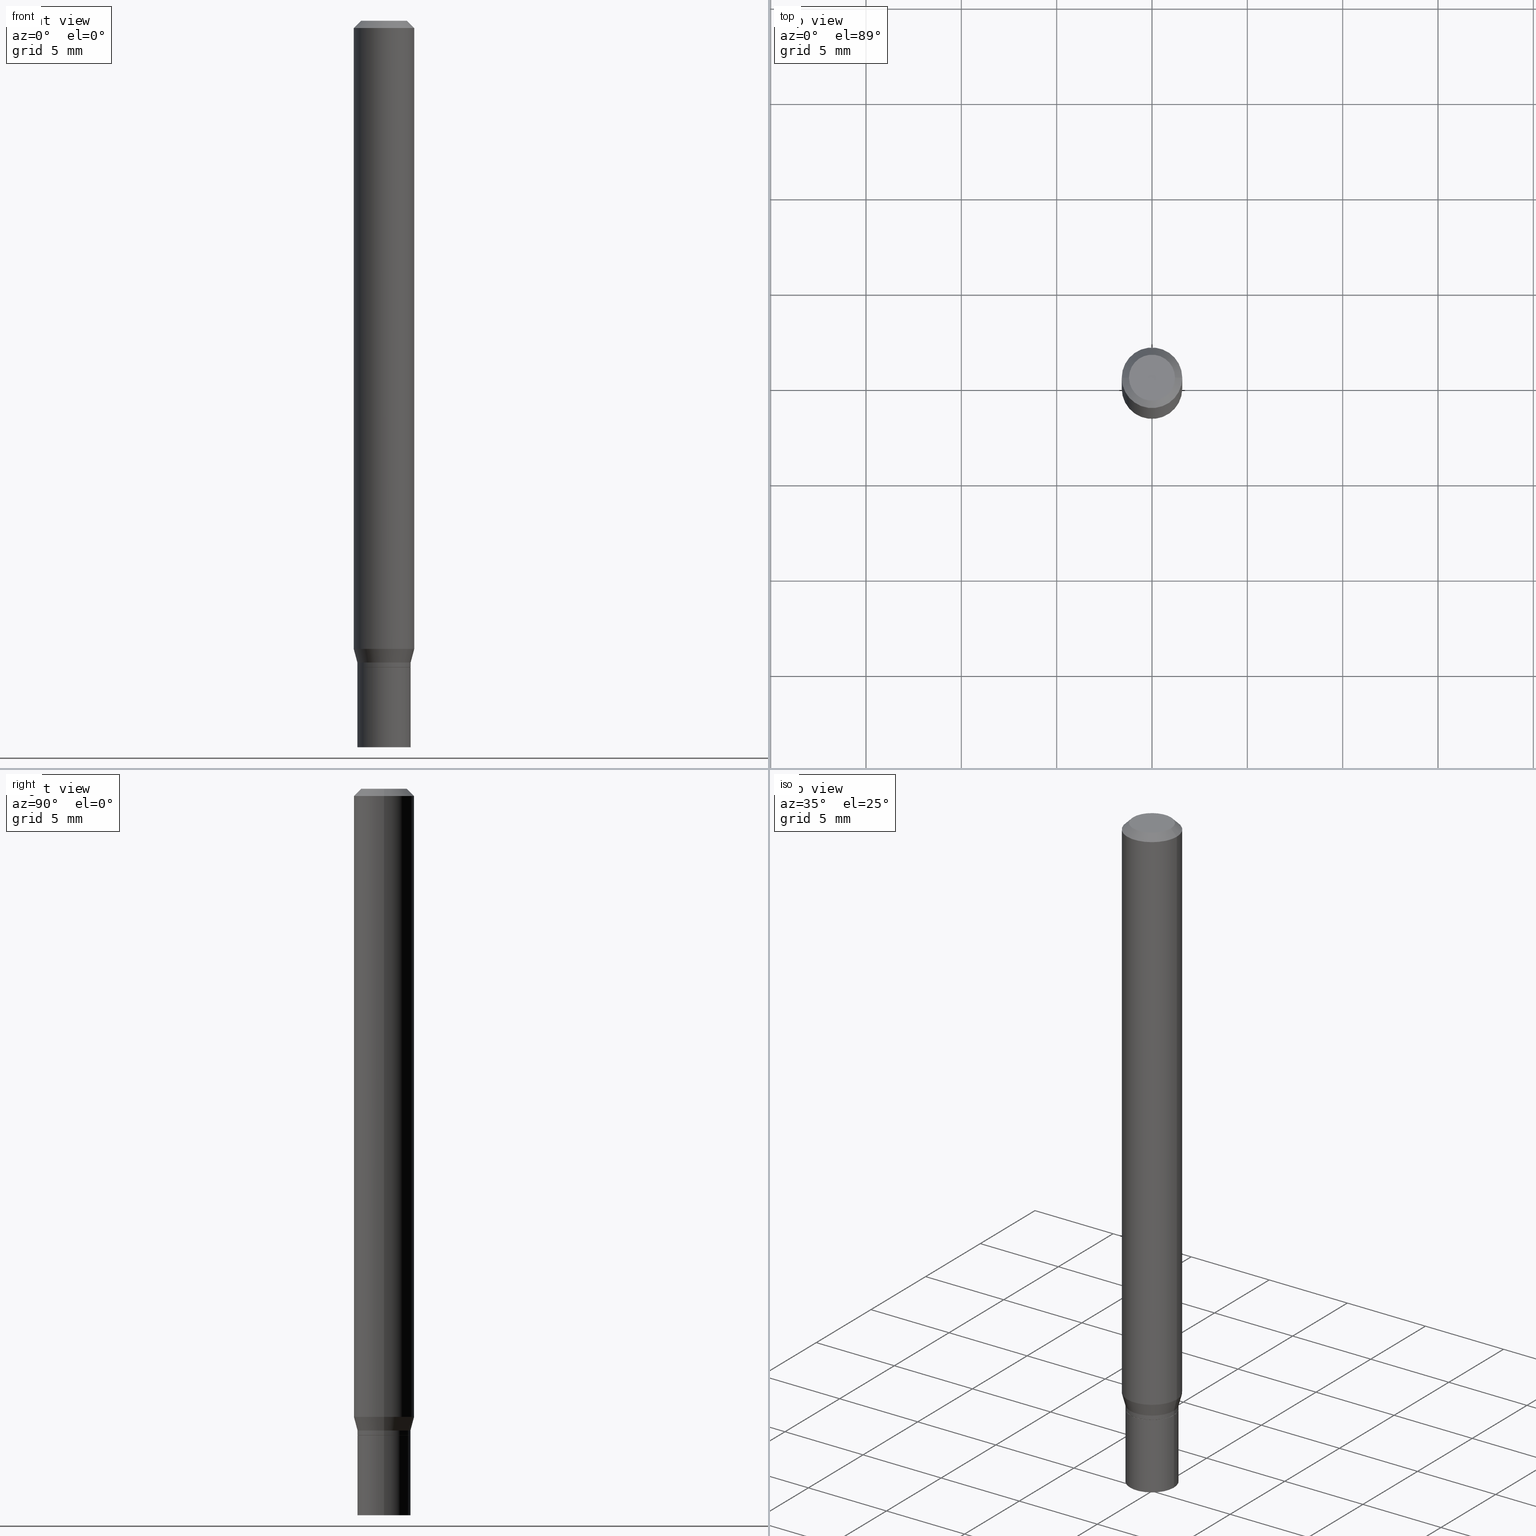
[diagram: canonical four-view strip — front | top / right | iso, engineering-drawing reading convention]
A machine part, canonical four-view strip (front | top / right | iso — engineering-drawing reading convention). The complete STEP part file that produces these views, byte-faithful:
ISO-10303-21;
HEADER;
FILE_DESCRIPTION (( 'STEP AP203' ),
    '1' );
FILE_NAME ('02433.STEP',
    '2024-03-18T20:34:24',
    ( '' ),
    ( '' ),
    'SwSTEP 2.0',
    'SolidWorks 2023',
    '' );
FILE_SCHEMA (( 'CONFIG_CONTROL_DESIGN' ));
ENDSEC;

DATA;
#1 = CARTESIAN_POINT ( 'NONE',  ( 3.668203209277705088E-31, -5.237222008264718399E-17, -0.01499999999999999944 ) ) ;
#2 = ADVANCED_FACE ( 'NONE', ( #409 ), #168, .F. ) ;
#3 = ADVANCED_FACE ( 'NONE', ( #81 ), #412, .T. ) ;
#4 = CARTESIAN_POINT ( 'NONE',  ( 3.264700856257157760E-29, -4.661127587355599122E-15, -1.335000000000000187 ) ) ;
#5 = DIRECTION ( 'NONE',  ( 1.000000000000000000, -6.982962677686266711E-15, 0.000000000000000000 ) ) ;
#6 = VECTOR ( 'NONE', #228, 39.37007874015748143 ) ;
#7 = CARTESIAN_POINT ( 'NONE',  ( 3.316907271900976096E-16, 0.04749999999999999362, -2.653275547260257586E-16 ) ) ;
#8 = ADVANCED_FACE ( 'NONE', ( #335 ), #37, .T. ) ;
#9 = DATE_AND_TIME ( #88, #443 ) ;
#10 = CARTESIAN_POINT ( 'NONE',  ( 0.000000000000000000, 0.000000000000000000, 0.000000000000000000 ) ) ;
#11 = CARTESIAN_POINT ( 'NONE',  ( 3.264700856257157760E-29, -4.661127587355599122E-15, -1.335000000000000187 ) ) ;
#12 = CARTESIAN_POINT ( 'NONE',  ( 0.04749999999999999362, -4.035134999187581581E-16, -1.989643822619502098E-16 ) ) ;
#13 = VERTEX_POINT ( 'NONE', #264 ) ;
#14 = AXIS2_PLACEMENT_3D ( 'NONE', #49, #161, #338 ) ;
#15 = CIRCLE ( 'NONE', #245, 0.05499999999999991701 ) ;
#16 = PLANE ( 'NONE',  #306 ) ;
#17 = DIRECTION ( 'NONE',  ( -2.445468806185136597E-29, 3.491481338843145583E-15, 1.000000000000000000 ) ) ;
#18 = ORIENTED_EDGE ( 'NONE', *, *, #27, .T. ) ;
#19 = CARTESIAN_POINT ( 'NONE',  ( 4.865611903635008365E-45, -6.946804277620623666E-31, -1.989643822619527736E-16 ) ) ;
#20 = ORIENTED_EDGE ( 'NONE', *, *, #300, .F. ) ;
#21 = ADVANCED_FACE ( 'NONE', ( #270 ), #407, .F. ) ;
#22 = CARTESIAN_POINT ( 'NONE',  ( 0.06250000000000000000, -4.964920048195750682E-15, -1.297009618943233411 ) ) ;
#23 = AXIS2_PLACEMENT_3D ( 'NONE', #267, #428, #105 ) ;
#24 = ORIENTED_EDGE ( 'NONE', *, *, #27, .F. ) ;
#25 =( NAMED_UNIT ( * ) PLANE_ANGLE_UNIT ( ) SI_UNIT ( $, .RADIAN. ) );
#26 = VERTEX_POINT ( 'NONE', #373 ) ;
#27 = EDGE_CURVE ( 'NONE', #356, #144, #343, .T. ) ;
#28 = DIRECTION ( 'NONE',  ( -2.445468806185136597E-29, 3.491481338843145583E-15, 1.000000000000000000 ) ) ;
#29 = VERTEX_POINT ( 'NONE', #40 ) ;
#30 = DIRECTION ( 'NONE',  ( -2.445468806185136877E-29, 3.491481338843145188E-15, 1.000000000000000000 ) ) ;
#31 = EDGE_CURVE ( 'NONE', #246, #356, #309, .T. ) ;
#32 = DIRECTION ( 'NONE',  ( 0.7071067811865656694, -2.468850131082446387E-15, 0.7071067811865294761 ) ) ;
#33 = AXIS2_PLACEMENT_3D ( 'NONE', #142, #431, #330 ) ;
#34 = DIRECTION ( 'NONE',  ( 1.000000000000000000, -6.982962677686270655E-15, 0.000000000000000000 ) ) ;
#35 = DIRECTION ( 'NONE',  ( -2.445468806185136877E-29, 3.491481338843145188E-15, 1.000000000000000000 ) ) ;
#36 =( CONVERSION_BASED_UNIT ( 'INCH', #370 ) LENGTH_UNIT ( ) NAMED_UNIT ( #67 ) );
#37 = CYLINDRICAL_SURFACE ( 'NONE', #14, 0.05499999999999992395 ) ;
#38 = EDGE_CURVE ( 'NONE', #184, #13, #63, .T. ) ;
#39 = DATE_TIME_ROLE ( 'classification_date' ) ;
#40 = CARTESIAN_POINT ( 'NONE',  ( -0.05499999999999991701, -4.159904970144704999E-15, -1.325000000000000178 ) ) ;
#41 = CIRCLE ( 'NONE', #381, 0.05499999999999992395 ) ;
#42 = APPROVAL_PERSON_ORGANIZATION ( #45, #453, #203 ) ;
#43 = COORDINATED_UNIVERSAL_TIME_OFFSET ( 5, 0, .BEHIND. ) ;
#44 = COORDINATED_UNIVERSAL_TIME_OFFSET ( 5, 0, .BEHIND. ) ;
#45 = PERSON_AND_ORGANIZATION ( #293, #404 ) ;
#46 = VECTOR ( 'NONE', #78, 39.37007874015748854 ) ;
#47 = PRODUCT_RELATED_PRODUCT_CATEGORY ( 'detail', '', ( #430 ) ) ;
#48 = AXIS2_PLACEMENT_3D ( 'NONE', #456, #420, #454 ) ;
#49 = CARTESIAN_POINT ( 'NONE',  ( 0.000000000000000000, 0.000000000000000000, 0.000000000000000000 ) ) ;
#50 = EDGE_CURVE ( 'NONE', #57, #246, #382, .T. ) ;
#51 = ORIENTED_EDGE ( 'NONE', *, *, #66, .F. ) ;
#52 = DIRECTION ( 'NONE',  ( -2.445468806185136597E-29, 3.491481338843145583E-15, 1.000000000000000000 ) ) ;
#53 = CARTESIAN_POINT ( 'NONE',  ( -0.05500000000000000028, -4.558376293142103594E-15, -1.335000000000000187 ) ) ;
#54 = EDGE_CURVE ( 'NONE', #287, #26, #359, .T. ) ;
#55 = LOCAL_TIME ( 16, 34, 24.00000000000000000, #310 ) ;
#56 = DIRECTION ( 'NONE',  ( -2.445468806185136597E-29, 3.491481338843145583E-15, 1.000000000000000000 ) ) ;
#57 = VERTEX_POINT ( 'NONE', #208 ) ;
#58 = LINE ( 'NONE', #421, #148 ) ;
#59 = ORIENTED_EDGE ( 'NONE', *, *, #361, .T. ) ;
#60 = DIRECTION ( 'NONE',  ( 1.000000000000000000, -6.982962677686273021E-15, 0.000000000000000000 ) ) ;
#61 = ORIENTED_EDGE ( 'NONE', *, *, #406, .F. ) ;
#62 = CARTESIAN_POINT ( 'NONE',  ( 0.05500000000000000028, -3.840629472727446888E-16, 2.681897226687764826E-30 ) ) ;
#63 = CIRCLE ( 'NONE', #268, 0.05449999999999999983 ) ;
#64 = AXIS2_PLACEMENT_3D ( 'NONE', #129, #17, #280 ) ;
#65 = ORIENTED_EDGE ( 'NONE', *, *, #261, .T. ) ;
#66 = EDGE_CURVE ( 'NONE', #13, #455, #119, .T. ) ;
#67 = DIMENSIONAL_EXPONENTS ( 1.000000000000000000, 0.000000000000000000, 0.000000000000000000, 0.000000000000000000, 0.000000000000000000, 0.000000000000000000, 0.000000000000000000 ) ;
#68 = DIRECTION ( 'NONE',  ( -2.445468806185136877E-29, 3.491481338843145188E-15, 1.000000000000000000 ) ) ;
#69 = ORIENTED_EDGE ( 'NONE', *, *, #197, .F. ) ;
#70 = DIRECTION ( 'NONE',  ( -2.445468806185136597E-29, 3.491481338843145583E-15, 1.000000000000000000 ) ) ;
#71 = CARTESIAN_POINT ( 'NONE',  ( 0.05499999999999991701, -5.010275721239913246E-15, -1.325000000000000178 ) ) ;
#72 = EDGE_CURVE ( 'NONE', #413, #246, #114, .T. ) ;
#73 = CARTESIAN_POINT ( 'NONE',  ( -0.05449999999999999983, -4.273881796366344571E-15, -1.335000000000000187 ) ) ;
#74 = DIRECTION ( 'NONE',  ( -2.445468806185136597E-29, 3.491481338843145583E-15, 1.000000000000000000 ) ) ;
#75 = VECTOR ( 'NONE', #263, 39.37007874015748143 ) ;
#76 = LINE ( 'NONE', #62, #337 ) ;
#77 = EDGE_CURVE ( 'NONE', #399, #455, #41, .T. ) ;
#78 = DIRECTION ( 'NONE',  ( 0.2588190451025211281, 1.565188264969622954E-15, 0.9659258262890679791 ) ) ;
#79 = PERSON_AND_ORGANIZATION_ROLE ( 'creator' ) ;
#80 = APPROVAL ( #162, 'UNSPECIFIED' ) ;
#81 = FACE_OUTER_BOUND ( 'NONE', #102, .T. ) ;
#82 = MECHANICAL_CONTEXT ( 'NONE', #447, 'mechanical' ) ;
#83 = AXIS2_PLACEMENT_3D ( 'NONE', #101, #139, #133 ) ;
#84 = CIRCLE ( 'NONE', #48, 0.05500000000000000028 ) ;
#85 = PERSON_AND_ORGANIZATION ( #293, #404 ) ;
#86 = APPROVAL_STATUS ( 'not_yet_approved' ) ;
#87 = EDGE_CURVE ( 'NONE', #246, #413, #414, .T. ) ;
#88 = CALENDAR_DATE ( 2024, 18, 3 ) ;
#89 = DIRECTION ( 'NONE',  ( -2.445468806185136597E-29, 3.491481338843145583E-15, 1.000000000000000000 ) ) ;
#90 = VECTOR ( 'NONE', #433, 39.37007874015748143 ) ;
#91 = DIRECTION ( 'NONE',  ( 1.000000000000000000, -6.982962677686273021E-15, 0.000000000000000000 ) ) ;
#92 = EDGE_CURVE ( 'NONE', #455, #57, #266, .T. ) ;
#93 = ADVANCED_FACE ( 'NONE', ( #194 ), #219, .T. ) ;
#94 = CYLINDRICAL_SURFACE ( 'NONE', #464, 0.06250000000000000000 ) ;
#95 = UNCERTAINTY_MEASURE_WITH_UNIT (LENGTH_MEASURE( 1.000000000000000082E-05 ), #36, 'distance_accuracy_value', 'NONE');
#96 = FACE_OUTER_BOUND ( 'NONE', #272, .T. ) ;
#97 = ORIENTED_EDGE ( 'NONE', *, *, #250, .T. ) ;
#98 = AXIS2_PLACEMENT_3D ( 'NONE', #435, #74, #192 ) ;
#99 = DIRECTION ( 'NONE',  ( -0.2588190451025211281, 5.211531920934547886E-15, 0.9659258262890679791 ) ) ;
#100 = ORIENTED_EDGE ( 'NONE', *, *, #31, .F. ) ;
#101 = CARTESIAN_POINT ( 'NONE',  ( 3.668203209277705088E-31, -5.237222008264718399E-17, -0.01499999999999999944 ) ) ;
#102 = EDGE_LOOP ( 'NONE', ( #457, #135, #313, #321 ) ) ;
#103 = FACE_OUTER_BOUND ( 'NONE', #170, .T. ) ;
#104 = ORIENTED_EDGE ( 'NONE', *, *, #54, .F. ) ;
#105 = DIRECTION ( 'NONE',  ( -1.000000000000000000, 6.982962677686266711E-15, 0.000000000000000000 ) ) ;
#106 = CC_DESIGN_APPROVAL ( #453, ( #207 ) ) ;
#107 = ORIENTED_EDGE ( 'NONE', *, *, #300, .T. ) ;
#108 = CARTESIAN_POINT ( 'NONE',  ( -0.05499999999999992395, -4.268583342018123747E-15, -1.334500000000000242 ) ) ;
#109 = ADVANCED_FACE ( 'NONE', ( #96 ), #258, .T. ) ;
#110 = CC_DESIGN_PERSON_AND_ORGANIZATION_ASSIGNMENT ( #123, #79, ( #207 ) ) ;
#111 = VERTEX_POINT ( 'NONE', #316 ) ;
#112 = LINE ( 'NONE', #73, #159 ) ;
#113 = DIRECTION ( 'NONE',  ( -2.445468806185136597E-29, 3.491481338843145583E-15, 1.000000000000000000 ) ) ;
#114 = CIRCLE ( 'NONE', #98, 0.06250000000000000000 ) ;
#115 = ORIENTED_EDGE ( 'NONE', *, *, #50, .F. ) ;
#116 = MANIFOLD_SOLID_BREP ( 'Body-Move/Copy2[2]', #157 ) ;
#117 = SHAPE_DEFINITION_REPRESENTATION ( #190, #206 ) ;
#118 = MANIFOLD_SOLID_BREP ( 'Body-Move/Copy2[1]', #239 ) ;
#119 = LINE ( 'NONE', #367, #336 ) ;
#120 = APPROVAL_STATUS ( 'not_yet_approved' ) ;
#121 = APPLICATION_CONTEXT ( 'configuration controlled 3d designs of mechanical parts and assemblies' ) ;
#122 = CARTESIAN_POINT ( 'NONE',  ( 0.06250000000000000000, -4.364351673553916694E-16, 3.047610484872459871E-30 ) ) ;
#123 = PERSON_AND_ORGANIZATION ( #293, #404 ) ;
#124 = AXIS2_PLACEMENT_3D ( 'NONE', #19, #416, #253 ) ;
#125 = LOCAL_TIME ( 16, 34, 24.00000000000000000, #43 ) ;
#126 = ADVANCED_FACE ( 'NONE', ( #315 ), #215, .T. ) ;
#127 = DIRECTION ( 'NONE',  ( 0.000000000000000000, 0.000000000000000000, 1.000000000000000000 ) ) ;
#128 = APPROVAL_DATE_TIME ( #273, #140 ) ;
#129 = CARTESIAN_POINT ( 'NONE',  ( 3.240246168195306775E-29, -4.626212773967169051E-15, -1.325000000000000178 ) ) ;
#130 = VECTOR ( 'NONE', #68, 39.37007874015748143 ) ;
#131 = DIRECTION ( 'NONE',  ( -2.445468806185136597E-29, 3.491481338843145583E-15, 1.000000000000000000 ) ) ;
#132 = ORIENTED_EDGE ( 'NONE', *, *, #87, .F. ) ;
#133 = DIRECTION ( 'NONE',  ( -1.000000000000000000, 6.982962677686266711E-15, 0.000000000000000000 ) ) ;
#134 = ADVANCED_FACE ( 'NONE', ( #451 ), #449, .T. ) ;
#135 = ORIENTED_EDGE ( 'NONE', *, *, #77, .T. ) ;
#136 = DIRECTION ( 'NONE',  ( -2.445468806185136597E-29, 3.491481338843145583E-15, 1.000000000000000000 ) ) ;
#137 = ORIENTED_EDGE ( 'NONE', *, *, #92, .F. ) ;
#138 = AXIS2_PLACEMENT_3D ( 'NONE', #323, #325, #301 ) ;
#139 = DIRECTION ( 'NONE',  ( 2.445468806185136597E-29, -3.491481338843145583E-15, -1.000000000000000000 ) ) ;
#140 = APPROVAL ( #120, 'UNSPECIFIED' ) ;
#141 = EDGE_LOOP ( 'NONE', ( #365, #465, #132, #115 ) ) ;
#142 = CARTESIAN_POINT ( 'NONE',  ( 3.840629472727772786E-16, 0.05499999999999534428, -1.335000000000000409 ) ) ;
#143 = ADVANCED_FACE ( 'NONE', ( #419 ), #94, .T. ) ;
#144 = VERTEX_POINT ( 'NONE', #357 ) ;
#145 = DIRECTION ( 'NONE',  ( -2.445468806185136597E-29, 3.491481338843145583E-15, 1.000000000000000000 ) ) ;
#146 = VERTEX_POINT ( 'NONE', #318 ) ;
#147 = LINE ( 'NONE', #368, #75 ) ;
#148 = VECTOR ( 'NONE', #99, 39.37007874015748854 ) ;
#149 = CONICAL_SURFACE ( 'NONE', #23, 0.06250000000000000000, 0.7853981633974549403 ) ;
#150 = ORIENTED_EDGE ( 'NONE', *, *, #279, .F. ) ;
#151 = CARTESIAN_POINT ( 'NONE',  ( 3.668203209277704895E-29, -5.237222008264718177E-15, -1.500000000000000222 ) ) ;
#152 = DIRECTION ( 'NONE',  ( -2.445468806185136597E-29, 3.491481338843145583E-15, 1.000000000000000000 ) ) ;
#153 = ADVANCED_FACE ( 'NONE', ( #390 ), #16, .F. ) ;
#154 = FACE_OUTER_BOUND ( 'NONE', #182, .T. ) ;
#155 = DIRECTION ( 'NONE',  ( -2.445468806185136597E-29, 3.491481338843145583E-15, 1.000000000000000000 ) ) ;
#156 = APPLICATION_PROTOCOL_DEFINITION ( 'international standard', 'config_control_design', 1994, #121 ) ;
#157 = CLOSED_SHELL ( 'NONE', ( #8, #463, #109, #341, #271, #290, #143, #348, #2, #21, #93, #3 ) ) ;
#158 = DIRECTION ( 'NONE',  ( -2.445468806185136597E-29, 3.491481338843145583E-15, 1.000000000000000000 ) ) ;
#159 = VECTOR ( 'NONE', #183, 39.37007874015748143 ) ;
#160 = APPROVAL_DATE_TIME ( #380, #453 ) ;
#161 = DIRECTION ( 'NONE',  ( -2.445468806185136597E-29, 3.491481338843145583E-15, 1.000000000000000000 ) ) ;
#162 = APPROVAL_STATUS ( 'not_yet_approved' ) ;
#163 = APPLICATION_PROTOCOL_DEFINITION ( 'international standard', 'config_control_design', 1994, #447 ) ;
#164 = AXIS2_PLACEMENT_3D ( 'NONE', #4, #155, #283 ) ;
#165 = CONICAL_SURFACE ( 'NONE', #64, 0.05499999999999991701, 0.2617993877991498519 ) ;
#166 = PERSON_AND_ORGANIZATION ( #293, #404 ) ;
#167 = ORIENTED_EDGE ( 'NONE', *, *, #38, .T. ) ;
#168 = PLANE ( 'NONE',  #374 ) ;
#169 = FACE_OUTER_BOUND ( 'NONE', #175, .T. ) ;
#170 = EDGE_LOOP ( 'NONE', ( #218, #97 ) ) ;
#171 = AXIS2_PLACEMENT_3D ( 'NONE', #210, #52, #350 ) ;
#172 = LOCAL_TIME ( 16, 34, 24.00000000000000000, #44 ) ;
#173 = CARTESIAN_POINT ( 'NONE',  ( 3.668203209277705088E-31, -5.237222008264718399E-17, -0.01499999999999999944 ) ) ;
#174 = CARTESIAN_POINT ( 'NONE',  ( 3.240246168195306775E-29, -4.626212773967169051E-15, -1.325000000000000178 ) ) ;
#175 = EDGE_LOOP ( 'NONE', ( #69, #65, #187, #294 ) ) ;
#176 = CC_DESIGN_PERSON_AND_ORGANIZATION_ASSIGNMENT ( #278, #442, ( #352 ) ) ;
#177 = CARTESIAN_POINT ( 'NONE',  ( 3.263478121854064959E-29, -4.659381846686178407E-15, -1.334500000000000242 ) ) ;
#178 = ORIENTED_EDGE ( 'NONE', *, *, #77, .F. ) ;
#179 = AXIS2_PLACEMENT_3D ( 'NONE', #303, #113, #369 ) ;
#180 = CONICAL_SURFACE ( 'NONE', #205, 0.05499999999999991701, 0.2617993877991498519 ) ;
#181 = DIRECTION ( 'NONE',  ( 0.7071067811865522357, -7.319954787623271823E-15, -0.7071067811865427988 ) ) ;
#182 = EDGE_LOOP ( 'NONE', ( #389, #59, #24, #100 ) ) ;
#183 = DIRECTION ( 'NONE',  ( -0.7071067811865656694, 7.493145998870420424E-15, 0.7071067811865294761 ) ) ;
#184 = VERTEX_POINT ( 'NONE', #355 ) ;
#185 = CC_DESIGN_PERSON_AND_ORGANIZATION_ASSIGNMENT ( #166, #340, ( #430 ) ) ;
#186 = DIRECTION ( 'NONE',  ( 1.000000000000000000, -6.982962677686273021E-15, 0.000000000000000000 ) ) ;
#187 = ORIENTED_EDGE ( 'NONE', *, *, #50, .T. ) ;
#188 = CARTESIAN_POINT ( 'NONE',  ( 3.264700856257157760E-29, -4.661127587355599122E-15, -1.335000000000000187 ) ) ;
#189 = VECTOR ( 'NONE', #181, 39.37007874015748143 ) ;
#190 = PRODUCT_DEFINITION_SHAPE ( 'NONE', 'NONE',  #207 ) ;
#191 = SECURITY_CLASSIFICATION ( '', '', #334 ) ;
#192 = DIRECTION ( 'NONE',  ( 1.000000000000000000, -6.982962677686262766E-15, 0.000000000000000000 ) ) ;
#193 = CARTESIAN_POINT ( 'NONE',  ( 0.000000000000000000, 0.000000000000000000, 0.000000000000000000 ) ) ;
#194 = FACE_OUTER_BOUND ( 'NONE', #378, .T. ) ;
#195 = COORDINATED_UNIVERSAL_TIME_OFFSET ( 5, 0, .BEHIND. ) ;
#196 = VERTEX_POINT ( 'NONE', #53 ) ;
#197 = EDGE_CURVE ( 'NONE', #29, #413, #58, .T. ) ;
#198 =( GEOMETRIC_REPRESENTATION_CONTEXT ( 3 ) GLOBAL_UNCERTAINTY_ASSIGNED_CONTEXT ( ( #95 ) ) GLOBAL_UNIT_ASSIGNED_CONTEXT ( ( #36, #25, #379 ) ) REPRESENTATION_CONTEXT ( 'NONE', 'WORKASPACE' ) );
#199 = DIRECTION ( 'NONE',  ( 1.000000000000000000, -6.982962677686265922E-15, 4.876176775795935793E-29 ) ) ;
#200 = DIRECTION ( 'NONE',  ( 1.000000000000000000, 0.000000000000000000, 0.000000000000000000 ) ) ;
#201 = EDGE_CURVE ( 'NONE', #144, #356, #422, .T. ) ;
#202 = APPROVAL_DATE_TIME ( #436, #80 ) ;
#203 = APPROVAL_ROLE ( '' ) ;
#204 = AXIS2_PLACEMENT_3D ( 'NONE', #236, #438, #372 ) ;
#205 = AXIS2_PLACEMENT_3D ( 'NONE', #265, #327, #186 ) ;
#206 = ADVANCED_BREP_SHAPE_REPRESENTATION ( '02433', ( #118, #116, #360 ), #198 ) ;
#207 = PRODUCT_DEFINITION ( 'UNKNOWN', '', #352, #317 ) ;
#208 = CARTESIAN_POINT ( 'NONE',  ( 0.05499999999999991701, -5.010275721239913246E-15, -1.325000000000000178 ) ) ;
#209 = DIRECTION ( 'NONE',  ( 1.000000000000000000, -6.982962677686262766E-15, 0.000000000000000000 ) ) ;
#210 = CARTESIAN_POINT ( 'NONE',  ( 0.000000000000000000, 0.000000000000000000, 0.000000000000000000 ) ) ;
#211 = VECTOR ( 'NONE', #298, 39.37007874015748143 ) ;
#212 = DIRECTION ( 'NONE',  ( 1.000000000000000000, -6.982962677686265922E-15, 4.876176775795935793E-29 ) ) ;
#213 = EDGE_LOOP ( 'NONE', ( #425, #319 ) ) ;
#214 = CC_DESIGN_PERSON_AND_ORGANIZATION_ASSIGNMENT ( #411, #305, ( #191 ) ) ;
#215 = CYLINDRICAL_SURFACE ( 'NONE', #171, 0.05500000000000000028 ) ;
#216 = ORIENTED_EDGE ( 'NONE', *, *, #66, .T. ) ;
#217 = DIRECTION ( 'NONE',  ( 1.000000000000000000, -6.982962677686266711E-15, 4.876176775795935793E-29 ) ) ;
#218 = ORIENTED_EDGE ( 'NONE', *, *, #279, .T. ) ;
#219 = CONICAL_SURFACE ( 'NONE', #164, 0.05449999999999999983, 0.7853981633974739252 ) ;
#220 = CC_DESIGN_SECURITY_CLASSIFICATION ( #191, ( #352 ) ) ;
#221 = APPROVAL_PERSON_ORGANIZATION ( #243, #80, #376 ) ;
#222 = PLANE ( 'NONE',  #33 ) ;
#223 = ORIENTED_EDGE ( 'NONE', *, *, #441, .F. ) ;
#224 = CARTESIAN_POINT ( 'NONE',  ( -0.06250000000000000000, -4.084395670990296396E-15, -1.297009618943233411 ) ) ;
#225 = ORIENTED_EDGE ( 'NONE', *, *, #458, .T. ) ;
#226 = DIRECTION ( 'NONE',  ( 1.000000000000000000, -6.982962677686270655E-15, 0.000000000000000000 ) ) ;
#227 = CARTESIAN_POINT ( 'NONE',  ( 4.865611903635008365E-45, -6.946804277620623666E-31, -1.989643822619527736E-16 ) ) ;
#228 = DIRECTION ( 'NONE',  ( -2.445468806185136877E-29, 3.491481338843145188E-15, 1.000000000000000000 ) ) ;
#229 = AXIS2_PLACEMENT_3D ( 'NONE', #173, #285, #249 ) ;
#230 = LOCAL_TIME ( 16, 34, 24.00000000000000000, #237 ) ;
#231 = ORIENTED_EDGE ( 'NONE', *, *, #361, .F. ) ;
#232 = EDGE_CURVE ( 'NONE', #26, #287, #329, .T. ) ;
#233 = CARTESIAN_POINT ( 'NONE',  ( 0.05499999999999992395, -5.043444793958922603E-15, -1.334500000000000242 ) ) ;
#234 = ORIENTED_EDGE ( 'NONE', *, *, #458, .F. ) ;
#235 = EDGE_CURVE ( 'NONE', #287, #356, #386, .T. ) ;
#236 = CARTESIAN_POINT ( 'NONE',  ( 0.000000000000000000, 0.000000000000000000, 0.000000000000000000 ) ) ;
#237 = COORDINATED_UNIVERSAL_TIME_OFFSET ( 5, 0, .BEHIND. ) ;
#238 = EDGE_CURVE ( 'NONE', #455, #399, #252, .T. ) ;
#239 = CLOSED_SHELL ( 'NONE', ( #126, #153, #134, #377 ) ) ;
#240 = AXIS2_PLACEMENT_3D ( 'NONE', #151, #145, #366 ) ;
#241 = CALENDAR_DATE ( 2024, 18, 3 ) ;
#242 = DATE_AND_TIME ( #439, #230 ) ;
#243 = PERSON_AND_ORGANIZATION ( #293, #404 ) ;
#244 = DIRECTION ( 'NONE',  ( 1.000000000000000000, -6.982962677686270655E-15, 0.000000000000000000 ) ) ;
#245 = AXIS2_PLACEMENT_3D ( 'NONE', #255, #56, #60 ) ;
#246 = VERTEX_POINT ( 'NONE', #22 ) ;
#247 = CARTESIAN_POINT ( 'NONE',  ( 3.264700856257157760E-29, -4.661127587355599122E-15, -1.335000000000000187 ) ) ;
#248 = DIRECTION ( 'NONE',  ( 1.000000000000000000, -6.982962677686266711E-15, 4.876176775795935793E-29 ) ) ;
#249 = DIRECTION ( 'NONE',  ( 1.000000000000000000, -6.982962677686266711E-15, 0.000000000000000000 ) ) ;
#250 = EDGE_CURVE ( 'NONE', #196, #111, #84, .T. ) ;
#251 = EDGE_LOOP ( 'NONE', ( #61, #257 ) ) ;
#252 = CIRCLE ( 'NONE', #297, 0.05499999999999992395 ) ;
#253 = DIRECTION ( 'NONE',  ( 1.000000000000000000, -6.982962677686267499E-15, 4.852736867747366768E-29 ) ) ;
#254 = ORIENTED_EDGE ( 'NONE', *, *, #238, .T. ) ;
#255 = CARTESIAN_POINT ( 'NONE',  ( 3.240246168195306775E-29, -4.626212773967169051E-15, -1.325000000000000178 ) ) ;
#256 = ORIENTED_EDGE ( 'NONE', *, *, #274, .F. ) ;
#257 = ORIENTED_EDGE ( 'NONE', *, *, #302, .F. ) ;
#258 = CONICAL_SURFACE ( 'NONE', #83, 0.06250000000000000000, 0.7853981633974549403 ) ;
#259 = CIRCLE ( 'NONE', #240, 0.05500000000000000028 ) ;
#260 = CARTESIAN_POINT ( 'NONE',  ( 0.06250000000000000000, -4.888073874380388472E-16, -0.01499999999999999944 ) ) ;
#261 = EDGE_CURVE ( 'NONE', #29, #57, #15, .T. ) ;
#262 = ORIENTED_EDGE ( 'NONE', *, *, #232, .F. ) ;
#263 = DIRECTION ( 'NONE',  ( -2.445468806185136877E-29, 3.491481338843145188E-15, 1.000000000000000000 ) ) ;
#264 = CARTESIAN_POINT ( 'NONE',  ( 0.05449999999999999983, -5.041699053289501100E-15, -1.335000000000000187 ) ) ;
#265 = CARTESIAN_POINT ( 'NONE',  ( 3.240246168195306775E-29, -4.626212773967169051E-15, -1.325000000000000178 ) ) ;
#266 = LINE ( 'NONE', #403, #446 ) ;
#267 = CARTESIAN_POINT ( 'NONE',  ( 3.668203209277705088E-31, -5.237222008264718399E-17, -0.01499999999999999944 ) ) ;
#268 = AXIS2_PLACEMENT_3D ( 'NONE', #275, #89, #244 ) ;
#269 = CIRCLE ( 'NONE', #311, 0.05499999999999991701 ) ;
#270 = FACE_OUTER_BOUND ( 'NONE', #393, .T. ) ;
#271 = ADVANCED_FACE ( 'NONE', ( #445 ), #165, .T. ) ;
#272 = EDGE_LOOP ( 'NONE', ( #104, #391, #18, #223 ) ) ;
#273 = DATE_AND_TIME ( #241, #125 ) ;
#274 = EDGE_CURVE ( 'NONE', #57, #29, #269, .T. ) ;
#275 = CARTESIAN_POINT ( 'NONE',  ( 3.264700856257157760E-29, -4.661127587355599122E-15, -1.335000000000000187 ) ) ;
#276 = APPROVAL_ROLE ( '' ) ;
#277 = AXIS2_PLACEMENT_3D ( 'NONE', #188, #70, #226 ) ;
#278 = PERSON_AND_ORGANIZATION ( #293, #404 ) ;
#279 = EDGE_CURVE ( 'NONE', #111, #196, #448, .T. ) ;
#280 = DIRECTION ( 'NONE',  ( 1.000000000000000000, -6.982962677686273021E-15, 0.000000000000000000 ) ) ;
#281 = AXIS2_PLACEMENT_3D ( 'NONE', #247, #384, #209 ) ;
#282 = ORIENTED_EDGE ( 'NONE', *, *, #339, .F. ) ;
#283 = DIRECTION ( 'NONE',  ( 1.000000000000000000, -6.982962677686270655E-15, 0.000000000000000000 ) ) ;
#284 = ORIENTED_EDGE ( 'NONE', *, *, #441, .T. ) ;
#285 = DIRECTION ( 'NONE',  ( -2.445468806185136597E-29, 3.491481338843145583E-15, 1.000000000000000000 ) ) ;
#286 = CARTESIAN_POINT ( 'NONE',  ( 0.000000000000000000, 0.000000000000000000, 0.000000000000000000 ) ) ;
#287 = VERTEX_POINT ( 'NONE', #12 ) ;
#288 = AXIS2_PLACEMENT_3D ( 'NONE', #11, #440, #199 ) ;
#289 = CONICAL_SURFACE ( 'NONE', #277, 0.05449999999999999983, 0.7853981633974739252 ) ;
#290 = ADVANCED_FACE ( 'NONE', ( #169 ), #180, .T. ) ;
#291 = DIRECTION ( 'NONE',  ( 1.000000000000000000, -6.982962677686272233E-15, 0.000000000000000000 ) ) ;
#292 = ORIENTED_EDGE ( 'NONE', *, *, #250, .F. ) ;
#293 = PERSON ( 'UNSPECIFIED', 'UNSPECIFIED', 'UNSPECIFIED', ('UNSPECIFIED'), ('UNSPECIFIED'), ('UNSPECIFIED') ) ;
#294 = ORIENTED_EDGE ( 'NONE', *, *, #72, .F. ) ;
#295 = LINE ( 'NONE', #394, #6 ) ;
#296 = EDGE_LOOP ( 'NONE', ( #225, #107, #423, #51 ) ) ;
#297 = AXIS2_PLACEMENT_3D ( 'NONE', #177, #353, #291 ) ;
#298 = DIRECTION ( 'NONE',  ( -0.7071067811865522357, 2.468850131082306364E-15, -0.7071067811865427988 ) ) ;
#299 = VERTEX_POINT ( 'NONE', #402 ) ;
#300 = EDGE_CURVE ( 'NONE', #184, #399, #112, .T. ) ;
#301 = DIRECTION ( 'NONE',  ( 1.000000000000000000, -6.982962677686262766E-15, 0.000000000000000000 ) ) ;
#302 = EDGE_CURVE ( 'NONE', #299, #146, #259, .T. ) ;
#303 = CARTESIAN_POINT ( 'NONE',  ( 3.171796564447747781E-29, -4.528484880840358223E-15, -1.297009618943233411 ) ) ;
#304 = ORIENTED_EDGE ( 'NONE', *, *, #410, .F. ) ;
#305 = PERSON_AND_ORGANIZATION_ROLE ( 'classification_officer' ) ;
#306 = AXIS2_PLACEMENT_3D ( 'NONE', #424, #385, #212 ) ;
#307 = DIRECTION ( 'NONE',  ( 1.000000000000000000, -6.982962677686267499E-15, 4.852736867747366768E-29 ) ) ;
#308 = CALENDAR_DATE ( 2024, 18, 3 ) ;
#309 = LINE ( 'NONE', #122, #90 ) ;
#310 = COORDINATED_UNIVERSAL_TIME_OFFSET ( 5, 0, .BEHIND. ) ;
#311 = AXIS2_PLACEMENT_3D ( 'NONE', #174, #136, #91 ) ;
#312 = PERSON_AND_ORGANIZATION ( #293, #404 ) ;
#313 = ORIENTED_EDGE ( 'NONE', *, *, #92, .T. ) ;
#314 = DIRECTION ( 'NONE',  ( 2.438088387897960049E-29, -3.491481338843145188E-15, -1.000000000000000000 ) ) ;
#315 = FACE_OUTER_BOUND ( 'NONE', #326, .T. ) ;
#316 = CARTESIAN_POINT ( 'NONE',  ( 0.05500000000000000028, -5.045190534628344107E-15, -1.335000000000000187 ) ) ;
#317 = DESIGN_CONTEXT ( 'detailed design', #121, 'design' ) ;
#318 = CARTESIAN_POINT ( 'NONE',  ( 0.05500000000000000028, -5.621284955537463161E-15, -1.500000000000000222 ) ) ;
#319 = ORIENTED_EDGE ( 'NONE', *, *, #54, .T. ) ;
#320 = CARTESIAN_POINT ( 'NONE',  ( 0.06250000000000000000, -4.811533449433679005E-16, -0.01499999999999999944 ) ) ;
#321 = ORIENTED_EDGE ( 'NONE', *, *, #261, .F. ) ;
#322 = AXIS2_PLACEMENT_3D ( 'NONE', #227, #158, #307 ) ;
#323 = CARTESIAN_POINT ( 'NONE',  ( 3.668203209277704895E-29, -5.237222008264718177E-15, -1.500000000000000222 ) ) ;
#324 = ORIENTED_EDGE ( 'NONE', *, *, #201, .T. ) ;
#325 = DIRECTION ( 'NONE',  ( -2.445468806185136597E-29, 3.491481338843145583E-15, 1.000000000000000000 ) ) ;
#326 = EDGE_LOOP ( 'NONE', ( #429, #418, #150, #304 ) ) ;
#327 = DIRECTION ( 'NONE',  ( -2.445468806185136597E-29, 3.491481338843145583E-15, 1.000000000000000000 ) ) ;
#328 = ORIENTED_EDGE ( 'NONE', *, *, #38, .F. ) ;
#329 = CIRCLE ( 'NONE', #124, 0.04749999999999999362 ) ;
#330 = DIRECTION ( 'NONE',  ( -1.000000000000000000, 6.982962677686265922E-15, -4.876176775795935793E-29 ) ) ;
#331 = CARTESIAN_POINT ( 'NONE',  ( 3.263478121854064959E-29, -4.659381846686178407E-15, -1.334500000000000242 ) ) ;
#332 =( LENGTH_UNIT ( ) NAMED_UNIT ( * ) SI_UNIT ( $, .METRE. ) );
#333 = DIRECTION ( 'NONE',  ( 1.000000000000000000, -6.982962677686272233E-15, 0.000000000000000000 ) ) ;
#334 = SECURITY_CLASSIFICATION_LEVEL ( 'unclassified' ) ;
#335 = FACE_OUTER_BOUND ( 'NONE', #354, .T. ) ;
#336 = VECTOR ( 'NONE', #32, 39.37007874015748143 ) ;
#337 = VECTOR ( 'NONE', #30, 39.37007874015748143 ) ;
#338 = DIRECTION ( 'NONE',  ( 1.000000000000000000, -6.982962677686265922E-15, 4.876176775795935793E-29 ) ) ;
#339 = EDGE_CURVE ( 'NONE', #299, #196, #295, .T. ) ;
#340 = PERSON_AND_ORGANIZATION_ROLE ( 'design_owner' ) ;
#341 = ADVANCED_FACE ( 'NONE', ( #154 ), #466, .T. ) ;
#342 = CALENDAR_DATE ( 2024, 18, 3 ) ;
#343 = CIRCLE ( 'NONE', #387, 0.06250000000000000000 ) ;
#344 = CIRCLE ( 'NONE', #138, 0.05500000000000000028 ) ;
#345 = ORIENTED_EDGE ( 'NONE', *, *, #31, .T. ) ;
#346 = DIRECTION ( 'NONE',  ( -1.000000000000000000, 6.982962677686265922E-15, -4.876176775795935793E-29 ) ) ;
#347 = CARTESIAN_POINT ( 'NONE',  ( 0.000000000000000000, 0.000000000000000000, 0.000000000000000000 ) ) ;
#348 = ADVANCED_FACE ( 'NONE', ( #462 ), #149, .T. ) ;
#349 = CC_DESIGN_DATE_AND_TIME_ASSIGNMENT ( #242, #408, ( #207 ) ) ;
#350 = DIRECTION ( 'NONE',  ( 1.000000000000000000, -6.982962677686266711E-15, 4.876176775795935793E-29 ) ) ;
#351 = AXIS2_PLACEMENT_3D ( 'NONE', #347, #131, #217 ) ;
#352 = PRODUCT_DEFINITION_FORMATION_WITH_SPECIFIED_SOURCE ( 'ANY', '', #430, .NOT_KNOWN. ) ;
#353 = DIRECTION ( 'NONE',  ( -2.445468806185136597E-29, 3.491481338843145583E-15, 1.000000000000000000 ) ) ;
#354 = EDGE_LOOP ( 'NONE', ( #254, #461, #256, #137 ) ) ;
#355 = CARTESIAN_POINT ( 'NONE',  ( -0.05449999999999999983, -4.271232569192234159E-15, -1.335000000000000187 ) ) ;
#356 = VERTEX_POINT ( 'NONE', #260 ) ;
#357 = CARTESIAN_POINT ( 'NONE',  ( -0.06250000000000000000, -1.846339340611440232E-15, -0.01499999999999999944 ) ) ;
#358 = ORIENTED_EDGE ( 'NONE', *, *, #72, .T. ) ;
#359 = CIRCLE ( 'NONE', #322, 0.04749999999999999362 ) ;
#360 = AXIS2_PLACEMENT_3D ( 'NONE', #10, #127, #200 ) ;
#361 = EDGE_CURVE ( 'NONE', #413, #144, #405, .T. ) ;
#362 = CARTESIAN_POINT ( 'NONE',  ( -0.06250000000000000000, 3.840629472727444916E-16, -0.01499999999999999944 ) ) ;
#363 = EDGE_LOOP ( 'NONE', ( #282, #452, #460, #292 ) ) ;
#364 = CARTESIAN_POINT ( 'NONE',  ( 3.264700856257157760E-29, -4.661127587355599122E-15, -1.335000000000000187 ) ) ;
#365 = ORIENTED_EDGE ( 'NONE', *, *, #274, .T. ) ;
#366 = DIRECTION ( 'NONE',  ( 1.000000000000000000, -6.982962677686262766E-15, 0.000000000000000000 ) ) ;
#367 = CARTESIAN_POINT ( 'NONE',  ( 0.05449999999999999983, -5.041699053289501100E-15, -1.335000000000000187 ) ) ;
#368 = CARTESIAN_POINT ( 'NONE',  ( -0.05499999999999992395, 3.907985046680545619E-16, -2.705414299640194509E-30 ) ) ;
#369 = DIRECTION ( 'NONE',  ( 1.000000000000000000, -6.982962677686262766E-15, 0.000000000000000000 ) ) ;
#370 = LENGTH_MEASURE_WITH_UNIT ( LENGTH_MEASURE( 0.02539999999999999897 ), #332 );
#371 = CC_DESIGN_DATE_AND_TIME_ASSIGNMENT ( #9, #39, ( #191 ) ) ;
#372 = DIRECTION ( 'NONE',  ( 1.000000000000000000, -6.982962677686265922E-15, 4.876176775795935793E-29 ) ) ;
#373 = CARTESIAN_POINT ( 'NONE',  ( -0.04749999999999999362, 3.578768372314206562E-16, -1.989643822619551895E-16 ) ) ;
#374 = AXIS2_PLACEMENT_3D ( 'NONE', #7, #314, #346 ) ;
#375 = CC_DESIGN_APPROVAL ( #140, ( #352 ) ) ;
#376 = APPROVAL_ROLE ( '' ) ;
#377 = ADVANCED_FACE ( 'NONE', ( #103 ), #222, .F. ) ;
#378 = EDGE_LOOP ( 'NONE', ( #20, #167, #216, #178 ) ) ;
#379 =( NAMED_UNIT ( * ) SI_UNIT ( $, .STERADIAN. ) SOLID_ANGLE_UNIT ( ) );
#380 = DATE_AND_TIME ( #342, #55 ) ;
#381 = AXIS2_PLACEMENT_3D ( 'NONE', #331, #152, #333 ) ;
#382 = LINE ( 'NONE', #71, #46 ) ;
#383 = AXIS2_PLACEMENT_3D ( 'NONE', #364, #28, #34 ) ;
#384 = DIRECTION ( 'NONE',  ( -2.445468806185136597E-29, 3.491481338843145583E-15, 1.000000000000000000 ) ) ;
#385 = DIRECTION ( 'NONE',  ( -2.438088387897960049E-29, 3.491481338843145188E-15, 1.000000000000000000 ) ) ;
#386 = LINE ( 'NONE', #320, #189 ) ;
#387 = AXIS2_PLACEMENT_3D ( 'NONE', #1, #401, #5 ) ;
#388 = AXIS2_PLACEMENT_3D ( 'NONE', #193, #426, #459 ) ;
#389 = ORIENTED_EDGE ( 'NONE', *, *, #87, .T. ) ;
#390 = FACE_OUTER_BOUND ( 'NONE', #251, .T. ) ;
#391 = ORIENTED_EDGE ( 'NONE', *, *, #235, .T. ) ;
#392 = DIRECTION ( 'NONE',  ( -2.445468806185136597E-29, 3.491481338843145583E-15, 1.000000000000000000 ) ) ;
#393 = EDGE_LOOP ( 'NONE', ( #234, #328 ) ) ;
#394 = CARTESIAN_POINT ( 'NONE',  ( -0.05500000000000000028, 3.907985046680551042E-16, -2.705414299640198362E-30 ) ) ;
#395 = EDGE_LOOP ( 'NONE', ( #450, #262, #284, #324 ) ) ;
#396 = CIRCLE ( 'NONE', #383, 0.05449999999999999983 ) ;
#397 = CARTESIAN_POINT ( 'NONE',  ( -0.06250000000000000000, 4.440892098500626162E-16, -3.074334431409316114E-30 ) ) ;
#398 = CC_DESIGN_PERSON_AND_ORGANIZATION_ASSIGNMENT ( #312, #444, ( #352 ) ) ;
#399 = VERTEX_POINT ( 'NONE', #108 ) ;
#400 = FACE_OUTER_BOUND ( 'NONE', #296, .T. ) ;
#401 = DIRECTION ( 'NONE',  ( -2.445468806185136597E-29, 3.491481338843145583E-15, 1.000000000000000000 ) ) ;
#402 = CARTESIAN_POINT ( 'NONE',  ( -0.05500000000000000028, -4.558376293142103594E-15, -1.500000000000000222 ) ) ;
#403 = CARTESIAN_POINT ( 'NONE',  ( 0.05499999999999992395, -3.840629472727440972E-16, 2.681897226687760973E-30 ) ) ;
#404 = ORGANIZATION ( 'UNSPECIFIED', 'UNSPECIFIED', '' ) ;
#405 = LINE ( 'NONE', #397, #130 ) ;
#406 = EDGE_CURVE ( 'NONE', #146, #299, #344, .T. ) ;
#407 = PLANE ( 'NONE',  #288 ) ;
#408 = DATE_TIME_ROLE ( 'creation_date' ) ;
#409 = FACE_OUTER_BOUND ( 'NONE', #213, .T. ) ;
#410 = EDGE_CURVE ( 'NONE', #146, #111, #76, .T. ) ;
#411 = PERSON_AND_ORGANIZATION ( #293, #404 ) ;
#412 = CYLINDRICAL_SURFACE ( 'NONE', #204, 0.05499999999999992395 ) ;
#413 = VERTEX_POINT ( 'NONE', #224 ) ;
#414 = CIRCLE ( 'NONE', #179, 0.06250000000000000000 ) ;
#415 = CC_DESIGN_APPROVAL ( #80, ( #191 ) ) ;
#416 = DIRECTION ( 'NONE',  ( -2.445468806185136597E-29, 3.491481338843145583E-15, 1.000000000000000000 ) ) ;
#417 = APPROVAL_PERSON_ORGANIZATION ( #85, #140, #276 ) ;
#418 = ORIENTED_EDGE ( 'NONE', *, *, #339, .T. ) ;
#419 = FACE_OUTER_BOUND ( 'NONE', #427, .T. ) ;
#420 = DIRECTION ( 'NONE',  ( -2.445468806185136597E-29, 3.491481338843145583E-15, 1.000000000000000000 ) ) ;
#421 = CARTESIAN_POINT ( 'NONE',  ( -0.05499999999999991701, -4.235414269299114390E-15, -1.325000000000000178 ) ) ;
#422 = CIRCLE ( 'NONE', #229, 0.06250000000000000000 ) ;
#423 = ORIENTED_EDGE ( 'NONE', *, *, #238, .F. ) ;
#424 = CARTESIAN_POINT ( 'NONE',  ( 3.576687321579069994E-29, -5.368277968210015545E-15, -1.500000000000000222 ) ) ;
#425 = ORIENTED_EDGE ( 'NONE', *, *, #232, .T. ) ;
#426 = DIRECTION ( 'NONE',  ( -2.445468806185136597E-29, 3.491481338843145583E-15, 1.000000000000000000 ) ) ;
#427 = EDGE_LOOP ( 'NONE', ( #231, #358, #345, #432 ) ) ;
#428 = DIRECTION ( 'NONE',  ( 2.445468806185136597E-29, -3.491481338843145583E-15, -1.000000000000000000 ) ) ;
#429 = ORIENTED_EDGE ( 'NONE', *, *, #406, .T. ) ;
#430 = PRODUCT ( '02433', '02433', '', ( #82 ) ) ;
#431 = DIRECTION ( 'NONE',  ( 2.438088387897960049E-29, -3.491481338843145188E-15, -1.000000000000000000 ) ) ;
#432 = ORIENTED_EDGE ( 'NONE', *, *, #201, .F. ) ;
#433 = DIRECTION ( 'NONE',  ( -2.445468806185136877E-29, 3.491481338843145188E-15, 1.000000000000000000 ) ) ;
#434 = LINE ( 'NONE', #362, #211 ) ;
#435 = CARTESIAN_POINT ( 'NONE',  ( 3.171796564447747781E-29, -4.528484880840358223E-15, -1.297009618943233411 ) ) ;
#436 = DATE_AND_TIME ( #308, #172 ) ;
#437 = EDGE_CURVE ( 'NONE', #399, #29, #147, .T. ) ;
#438 = DIRECTION ( 'NONE',  ( -2.445468806185136597E-29, 3.491481338843145583E-15, 1.000000000000000000 ) ) ;
#439 = CALENDAR_DATE ( 2024, 18, 3 ) ;
#440 = DIRECTION ( 'NONE',  ( -2.438088387897960049E-29, 3.491481338843145188E-15, 1.000000000000000000 ) ) ;
#441 = EDGE_CURVE ( 'NONE', #26, #144, #434, .T. ) ;
#442 = PERSON_AND_ORGANIZATION_ROLE ( 'design_supplier' ) ;
#443 = LOCAL_TIME ( 16, 34, 24.00000000000000000, #195 ) ;
#444 = PERSON_AND_ORGANIZATION_ROLE ( 'creator' ) ;
#445 = FACE_OUTER_BOUND ( 'NONE', #141, .T. ) ;
#446 = VECTOR ( 'NONE', #35, 39.37007874015748143 ) ;
#447 = APPLICATION_CONTEXT ( 'configuration controlled 3d designs of mechanical parts and assemblies' ) ;
#448 = CIRCLE ( 'NONE', #281, 0.05500000000000000028 ) ;
#449 = CYLINDRICAL_SURFACE ( 'NONE', #351, 0.05500000000000000028 ) ;
#450 = ORIENTED_EDGE ( 'NONE', *, *, #235, .F. ) ;
#451 = FACE_OUTER_BOUND ( 'NONE', #363, .T. ) ;
#452 = ORIENTED_EDGE ( 'NONE', *, *, #302, .T. ) ;
#453 = APPROVAL ( #86, 'UNSPECIFIED' ) ;
#454 = DIRECTION ( 'NONE',  ( 1.000000000000000000, -6.982962677686262766E-15, 0.000000000000000000 ) ) ;
#455 = VERTEX_POINT ( 'NONE', #233 ) ;
#456 = CARTESIAN_POINT ( 'NONE',  ( 3.264700856257157760E-29, -4.661127587355599122E-15, -1.335000000000000187 ) ) ;
#457 = ORIENTED_EDGE ( 'NONE', *, *, #437, .F. ) ;
#458 = EDGE_CURVE ( 'NONE', #13, #184, #396, .T. ) ;
#459 = DIRECTION ( 'NONE',  ( 1.000000000000000000, -6.982962677686266711E-15, 4.876176775795935793E-29 ) ) ;
#460 = ORIENTED_EDGE ( 'NONE', *, *, #410, .T. ) ;
#461 = ORIENTED_EDGE ( 'NONE', *, *, #437, .T. ) ;
#462 = FACE_OUTER_BOUND ( 'NONE', #395, .T. ) ;
#463 = ADVANCED_FACE ( 'NONE', ( #400 ), #289, .T. ) ;
#464 = AXIS2_PLACEMENT_3D ( 'NONE', #286, #392, #248 ) ;
#465 = ORIENTED_EDGE ( 'NONE', *, *, #197, .T. ) ;
#466 = CYLINDRICAL_SURFACE ( 'NONE', #388, 0.06250000000000000000 ) ;
ENDSEC;
END-ISO-10303-21;
